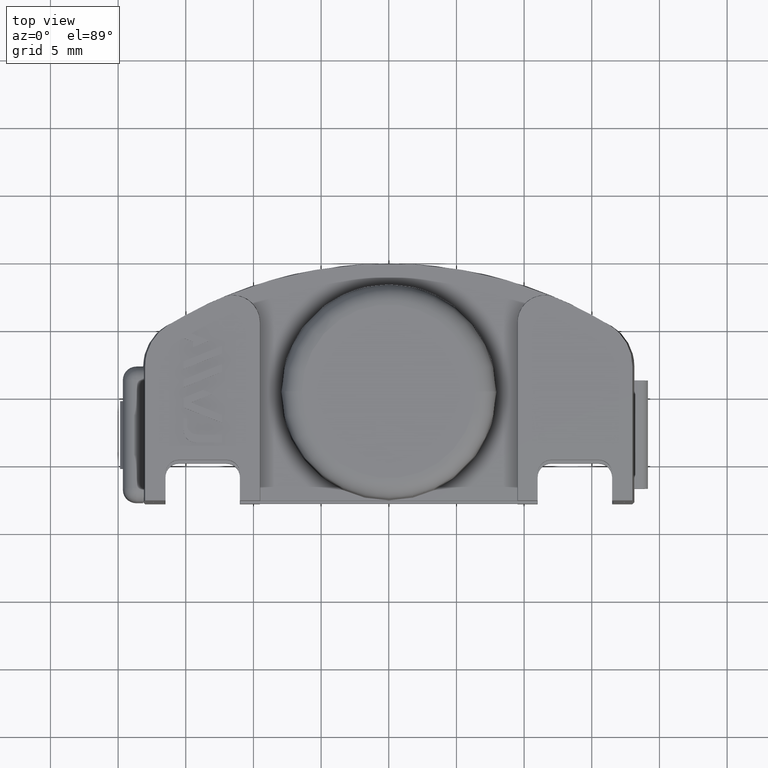
[diagram: clean part render]
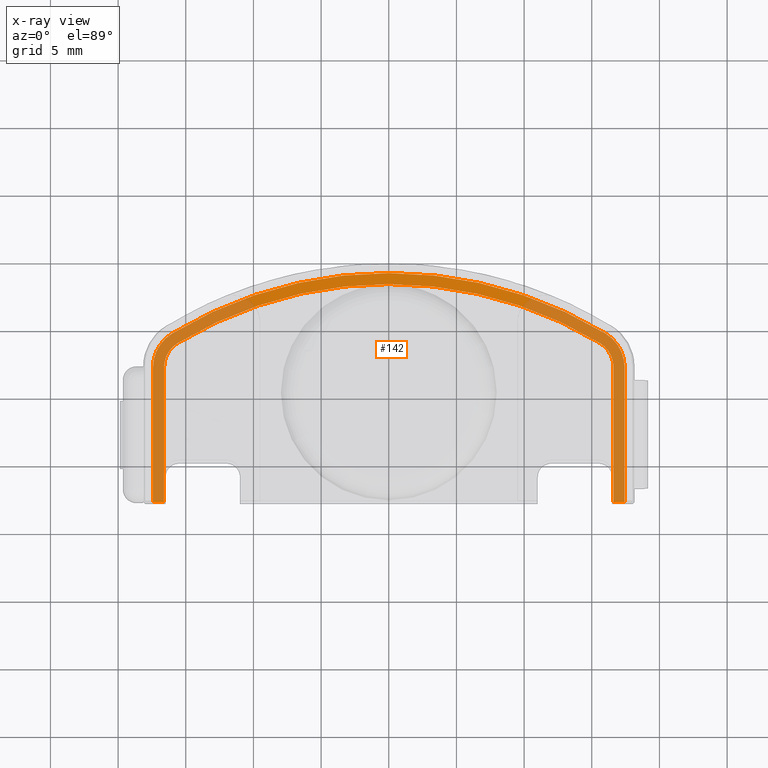
[diagram: x-ray — body ghosted, one internal face saturated and labeled with its STEP entity id]
A machine part, top view, then the same camera in x-ray: the body is ghosted and one INTERNAL B-rep face — a face not visible from any outside direction — is saturated and labeled: STEP entity #142.
In plain terms, the highlighted planar face has unit normal (0, 0, 1).
Its self-contained STEP definition (entity closure, byte-faithful):
#142=ADVANCED_FACE('',(#389),#390,.F.);
#389=FACE_OUTER_BOUND('',#861,.T.);
#390=PLANE('',#862);
#861=EDGE_LOOP('',(#1605,#1606,#1607,#1608,#1609,#1610,#1611,#1612,#1613,#1614,#1615,#1616,#1617));
#862=AXIS2_PLACEMENT_3D('',#1618,#1619,#1620);
#1605=ORIENTED_EDGE('',*,*,#2937,.T.);
#1606=ORIENTED_EDGE('',*,*,#2938,.F.);
#1607=ORIENTED_EDGE('',*,*,#2939,.F.);
#1608=ORIENTED_EDGE('',*,*,#2940,.F.);
#1609=ORIENTED_EDGE('',*,*,#2832,.F.);
#1610=ORIENTED_EDGE('',*,*,#2941,.F.);
#1611=ORIENTED_EDGE('',*,*,#2942,.F.);
#1612=ORIENTED_EDGE('',*,*,#2943,.F.);
#1613=ORIENTED_EDGE('',*,*,#2944,.F.);
#1614=ORIENTED_EDGE('',*,*,#2945,.T.);
#1615=ORIENTED_EDGE('',*,*,#2876,.T.);
#1616=ORIENTED_EDGE('',*,*,#2865,.T.);
#1617=ORIENTED_EDGE('',*,*,#2946,.T.);
#1618=CARTESIAN_POINT('',(14.5,1.95307913400698,-11.0));
#1619=DIRECTION('',(0.0,1.22464679914735E-16,1.0));
#1620=DIRECTION('',(0.0,-1.0,1.22464679914735E-16));
#2832=EDGE_CURVE('',#3363,#3366,#3367,.T.);
#2865=EDGE_CURVE('',#3428,#3429,#3430,.T.);
#2876=EDGE_CURVE('',#3448,#3428,#3449,.T.);
#2937=EDGE_CURVE('',#3547,#3548,#3549,.T.);
#2938=EDGE_CURVE('',#3550,#3548,#3551,.T.);
#2939=EDGE_CURVE('',#3552,#3550,#3553,.T.);
#2940=EDGE_CURVE('',#3366,#3552,#3554,.T.);
#2941=EDGE_CURVE('',#3555,#3363,#3556,.T.);
#2942=EDGE_CURVE('',#3557,#3555,#3558,.T.);
#2943=EDGE_CURVE('',#3559,#3557,#3560,.T.);
#2944=EDGE_CURVE('',#3561,#3559,#3562,.T.);
#2945=EDGE_CURVE('',#3561,#3448,#3563,.T.);
#2946=EDGE_CURVE('',#3429,#3547,#3564,.T.);
#3363=VERTEX_POINT('',#4217);
#3366=VERTEX_POINT('',#4221);
#3367=CIRCLE('',#4222,30.9221854544975);
#3428=VERTEX_POINT('',#4456);
#3429=VERTEX_POINT('',#4457);
#3430=CIRCLE('',#4458,30.1047303895693);
#3448=VERTEX_POINT('',#4485);
#3449=CIRCLE('',#4486,2.1047303895693);
#3547=VERTEX_POINT('',#4627);
#3548=VERTEX_POINT('',#4628);
#3549=LINE('',#4629,#4630);
#3550=VERTEX_POINT('',#4631);
#3551=LINE('',#4632,#4633);
#3552=VERTEX_POINT('',#4634);
#3553=LINE('',#4635,#4636);
#3554=CIRCLE('',#4637,2.92218545449751);
#3555=VERTEX_POINT('',#4638);
#3556=CIRCLE('',#4639,30.9221854544975);
#3557=VERTEX_POINT('',#4640);
#3558=CIRCLE('',#4641,2.92218545449753);
#3559=VERTEX_POINT('',#4642);
#3560=LINE('',#4643,#4644);
#3561=VERTEX_POINT('',#4645);
#3562=LINE('',#4646,#4647);
#3563=LINE('',#4648,#4649);
#3564=CIRCLE('',#4650,2.1047303895693);
#4217=CARTESIAN_POINT('',(-3.78687554394912E-15,8.9221854544975,-11.0));
#4221=CARTESIAN_POINT('',(-16.0132746103648,4.45291268528635,-11.0));
#4222=AXIS2_PLACEMENT_3D('',#5653,#5654,#5655);
#4456=CARTESIAN_POINT('',(15.589949666027,3.75360676176065,-11.0));
#4457=CARTESIAN_POINT('',(-15.589949666027,3.7536067617606,-11.0));
#4458=AXIS2_PLACEMENT_3D('',#5673,#5674,#5675);
#4485=CARTESIAN_POINT('',(16.6047303895693,1.95307913400698,-11.0));
#4486=AXIS2_PLACEMENT_3D('',#5691,#5692,#5693);
#4627=CARTESIAN_POINT('',(-16.6047303895693,1.95307913400696,-11.0));
#4628=CARTESIAN_POINT('',(-16.6047303895693,-8.0,-11.0));
#4629=CARTESIAN_POINT('',(-16.6047303895693,-8.0,-11.0));
#4630=VECTOR('',#5788,1000.0);
#4631=CARTESIAN_POINT('',(-17.4221854544976,-8.0,-11.0));
#4632=CARTESIAN_POINT('',(-17.4221854544976,-8.0,-11.0));
#4633=VECTOR('',#5789,1000.0);
#4634=CARTESIAN_POINT('',(-17.4221854544975,1.95307913400698,-11.0));
#4635=CARTESIAN_POINT('',(-17.4221854544976,1.95307913400698,-11.0));
#4636=VECTOR('',#5790,1000.0);
#4637=AXIS2_PLACEMENT_3D('',#5791,#5792,#5793);
#4638=CARTESIAN_POINT('',(16.0132746103648,4.4529126852864,-11.0));
#4639=AXIS2_PLACEMENT_3D('',#5794,#5795,#5796);
#4640=CARTESIAN_POINT('',(17.4221854544976,1.95307913400698,-11.0));
#4641=AXIS2_PLACEMENT_3D('',#5797,#5798,#5799);
#4642=CARTESIAN_POINT('',(17.4221854544976,-8.0,-11.0));
#4643=CARTESIAN_POINT('',(17.4221854544976,-8.0,-11.0));
#4644=VECTOR('',#5800,1000.0);
#4645=CARTESIAN_POINT('',(16.6047303895693,-8.0,-11.0));
#4646=CARTESIAN_POINT('',(16.5721854544975,-8.0,-11.0));
#4647=VECTOR('',#5801,1000.0);
#4648=CARTESIAN_POINT('',(16.6047303895693,-8.0,-11.0));
#4649=VECTOR('',#5802,1000.0);
#4650=AXIS2_PLACEMENT_3D('',#5803,#5804,#5805);
#5653=CARTESIAN_POINT('',(0.0,-22.0,-11.0));
#5654=DIRECTION('',(1.12199280256532E-16,1.22464679914735E-16,1.0));
#5655=DIRECTION('',(1.0,-1.37404489432798E-32,-1.12199280256532E-16));
#5673=CARTESIAN_POINT('',(0.0,-22.0,-11.0));
#5674=DIRECTION('',(0.0,1.22464679914735E-16,1.0));
#5675=DIRECTION('',(-1.0,0.0,0.0));
#5691=CARTESIAN_POINT('',(14.5,1.95307913400698,-11.0));
#5692=DIRECTION('',(0.0,1.22464679914735E-16,1.0));
#5693=DIRECTION('',(-1.0,0.0,0.0));
#5788=DIRECTION('',(6.12303176911189E-17,-1.0,1.22464679914735E-16));
#5789=DIRECTION('',(1.0,-1.48709648658254E-32,-1.21430643318376E-16));
#5790=DIRECTION('',(-3.8161327235171E-63,-1.0,1.22464679914735E-16));
#5791=CARTESIAN_POINT('',(-14.5,1.95307913400698,-11.0));
#5792=DIRECTION('',(-0.0,1.22464679914735E-16,1.0));
#5793=DIRECTION('',(1.0,0.0,0.0));
#5794=CARTESIAN_POINT('',(0.0,-22.0,-11.0));
#5795=DIRECTION('',(1.12199280256532E-16,1.22464679914735E-16,1.0));
#5796=DIRECTION('',(1.0,-1.37404489432798E-32,-1.12199280256532E-16));
#5797=CARTESIAN_POINT('',(14.5,1.95307913400698,-11.0));
#5798=DIRECTION('',(-0.0,1.22464679914735E-16,1.0));
#5799=DIRECTION('',(1.0,0.0,0.0));
#5800=DIRECTION('',(-3.48580263980767E-16,1.0,-1.22464679914735E-16));
#5801=DIRECTION('',(1.0,-1.48709648658254E-32,-1.21430643318376E-16));
#5802=DIRECTION('',(-6.12303176911189E-17,1.0,-1.22464679914735E-16));
#5803=CARTESIAN_POINT('',(-14.5,1.95307913400698,-11.0));
#5804=DIRECTION('',(0.0,1.22464679914735E-16,1.0));
#5805=DIRECTION('',(-1.0,0.0,0.0));